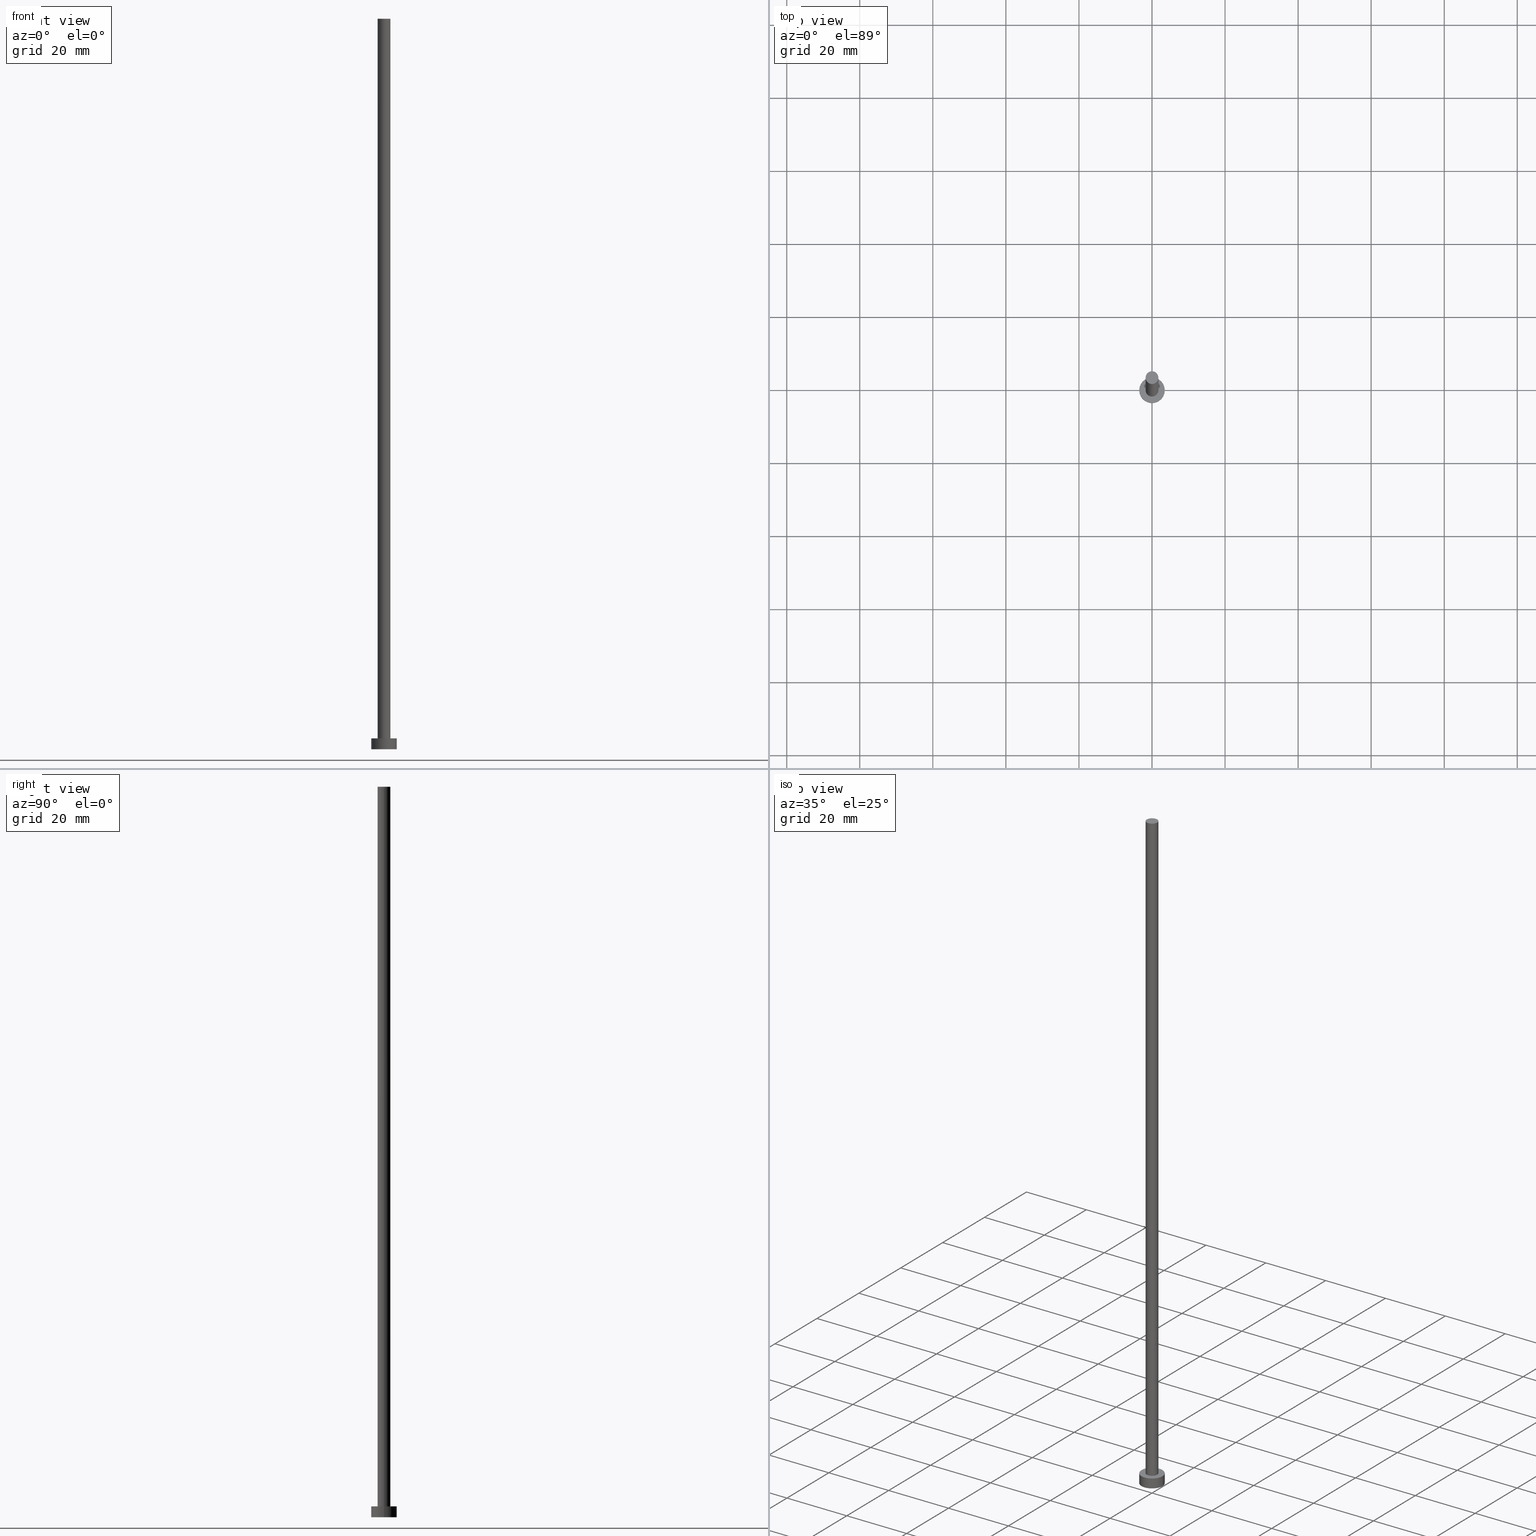
[diagram: canonical four-view strip — front | top / right | iso, engineering-drawing reading convention]
A machine part, canonical four-view strip (front | top / right | iso — engineering-drawing reading convention). The complete STEP part file that produces these views, byte-faithful:
ISO-10303-21;
HEADER;
FILE_DESCRIPTION (( 'STEP AP203' ),
    '1' );
FILE_NAME ('caa0.STEP',
    '2023-02-13T13:59:09',
    ( '' ),
    ( '' ),
    'SwSTEP 2.0',
    'SolidWorks 2019',
    '' );
FILE_SCHEMA (( 'CONFIG_CONTROL_DESIGN' ));
ENDSEC;

DATA;
#1 = ORIENTED_EDGE ( 'NONE', *, *, #119, .T. ) ;
#2 = ORIENTED_EDGE ( 'NONE', *, *, #165, .F. ) ;
#3 = AXIS2_PLACEMENT_3D ( 'NONE', #148, #222, #128 ) ;
#4 = CC_DESIGN_SECURITY_CLASSIFICATION ( #239, ( #167 ) ) ;
#5 = DIRECTION ( 'NONE',  ( 1.000000000000000000, 0.000000000000000000, -0.000000000000000000 ) ) ;
#6 = LINE ( 'NONE', #56, #9 ) ;
#7 = APPROVAL_DATE_TIME ( #207, #168 ) ;
#8 = CARTESIAN_POINT ( 'NONE',  ( 1.750000000000000000, 2.143131898507868297E-16, 200.0000000000000000 ) ) ;
#9 = VECTOR ( 'NONE', #190, 1000.000000000000000 ) ;
#10 = CARTESIAN_POINT ( 'NONE',  ( 0.000000000000000000, 0.000000000000000000, 3.000000000000000000 ) ) ;
#11 = COORDINATED_UNIVERSAL_TIME_OFFSET ( 1, 0, .AHEAD. ) ;
#12 = ADVANCED_FACE ( 'NONE', ( #62 ), #140, .F. ) ;
#13 = CIRCLE ( 'NONE', #81, 1.750000000000000000 ) ;
#14 = APPLICATION_CONTEXT ( 'configuration controlled 3d designs of mechanical parts and assemblies' ) ;
#15 = DIRECTION ( 'NONE',  ( 1.000000000000000000, 0.000000000000000000, 0.000000000000000000 ) ) ;
#16 = APPROVAL_PERSON_ORGANIZATION ( #208, #226, #174 ) ;
#17 = APPROVAL_STATUS ( 'not_yet_approved' ) ;
#18 = ORIENTED_EDGE ( 'NONE', *, *, #145, .T. ) ;
#19 = VERTEX_POINT ( 'NONE', #65 ) ;
#20 = DIRECTION ( 'NONE',  ( 0.000000000000000000, 0.000000000000000000, 1.000000000000000000 ) ) ;
#21 =( GEOMETRIC_REPRESENTATION_CONTEXT ( 3 ) GLOBAL_UNCERTAINTY_ASSIGNED_CONTEXT ( ( #131 ) ) GLOBAL_UNIT_ASSIGNED_CONTEXT ( ( #45, #26, #87 ) ) REPRESENTATION_CONTEXT ( 'NONE', 'WORKASPACE' ) );
#22 = EDGE_CURVE ( 'NONE', #177, #164, #43, .T. ) ;
#23 = ORIENTED_EDGE ( 'NONE', *, *, #141, .F. ) ;
#24 = FACE_OUTER_BOUND ( 'NONE', #143, .T. ) ;
#25 = AXIS2_PLACEMENT_3D ( 'NONE', #210, #116, #15 ) ;
#26 =( NAMED_UNIT ( * ) PLANE_ANGLE_UNIT ( ) SI_UNIT ( $, .RADIAN. ) );
#27 = COORDINATED_UNIVERSAL_TIME_OFFSET ( 1, 0, .AHEAD. ) ;
#28 = CARTESIAN_POINT ( 'NONE',  ( 0.000000000000000000, 0.000000000000000000, 3.000000000000000000 ) ) ;
#29 = MANIFOLD_SOLID_BREP ( 'P�idat vysunut�m3', #52 ) ;
#30 = DATE_AND_TIME ( #67, #199 ) ;
#31 = CC_DESIGN_PERSON_AND_ORGANIZATION_ASSIGNMENT ( #129, #169, ( #171 ) ) ;
#32 = APPROVAL_STATUS ( 'not_yet_approved' ) ;
#33 = APPLICATION_PROTOCOL_DEFINITION ( 'international standard', 'config_control_design', 1994, #14 ) ;
#34 = COORDINATED_UNIVERSAL_TIME_OFFSET ( 1, 0, .AHEAD. ) ;
#35 = CIRCLE ( 'NONE', #178, 1.750000000000000000 ) ;
#36 = CARTESIAN_POINT ( 'NONE',  ( -1.750000000000000000, 0.000000000000000000, 3.000000000000000000 ) ) ;
#37 = APPROVAL ( #53, 'NEUR�EN�' ) ;
#38 = CARTESIAN_POINT ( 'NONE',  ( 0.000000000000000000, 0.000000000000000000, 0.000000000000000000 ) ) ;
#39 = FACE_OUTER_BOUND ( 'NONE', #198, .T. ) ;
#40 = DIRECTION ( 'NONE',  ( 0.000000000000000000, 0.000000000000000000, 1.000000000000000000 ) ) ;
#41 = ORIENTED_EDGE ( 'NONE', *, *, #22, .F. ) ;
#42 = EDGE_LOOP ( 'NONE', ( #118, #181, #196, #106 ) ) ;
#43 = LINE ( 'NONE', #125, #172 ) ;
#44 = APPROVAL_PERSON_ORGANIZATION ( #48, #168, #111 ) ;
#45 =( LENGTH_UNIT ( ) NAMED_UNIT ( * ) SI_UNIT ( .MILLI., .METRE. ) );
#46 = VERTEX_POINT ( 'NONE', #144 ) ;
#47 = CIRCLE ( 'NONE', #3, 3.500000000000000444 ) ;
#48 = PERSON_AND_ORGANIZATION ( #175, #113 ) ;
#49 = FACE_OUTER_BOUND ( 'NONE', #83, .T. ) ;
#50 = CARTESIAN_POINT ( 'NONE',  ( 0.000000000000000000, 0.000000000000000000, 0.000000000000000000 ) ) ;
#51 = PERSON_AND_ORGANIZATION ( #175, #113 ) ;
#52 = CLOSED_SHELL ( 'NONE', ( #54, #187, #70, #243, #12, #160, #229 ) ) ;
#53 = APPROVAL_STATUS ( 'not_yet_approved' ) ;
#54 = ADVANCED_FACE ( 'NONE', ( #39 ), #176, .T. ) ;
#55 = DIRECTION ( 'NONE',  ( 1.000000000000000000, 0.000000000000000000, 0.000000000000000000 ) ) ;
#56 = CARTESIAN_POINT ( 'NONE',  ( -1.750000000000000000, 0.000000000000000000, 200.0000000000000000 ) ) ;
#57 = CC_DESIGN_PERSON_AND_ORGANIZATION_ASSIGNMENT ( #51, #110, ( #154 ) ) ;
#58 = VERTEX_POINT ( 'NONE', #36 ) ;
#59 = CARTESIAN_POINT ( 'NONE',  ( 0.000000000000000000, 0.000000000000000000, 3.000000000000000000 ) ) ;
#60 = EDGE_LOOP ( 'NONE', ( #2, #102 ) ) ;
#61 = PRODUCT_RELATED_PRODUCT_CATEGORY ( 'detail', '', ( #171 ) ) ;
#62 = FACE_OUTER_BOUND ( 'NONE', #60, .T. ) ;
#63 = AXIS2_PLACEMENT_3D ( 'NONE', #120, #20, #96 ) ;
#64 = DIRECTION ( 'NONE',  ( 0.000000000000000000, 0.000000000000000000, 1.000000000000000000 ) ) ;
#65 = CARTESIAN_POINT ( 'NONE',  ( 1.750000000000000000, 2.143131898507868297E-16, 3.000000000000000000 ) ) ;
#66 = DIRECTION ( 'NONE',  ( 0.000000000000000000, 0.000000000000000000, 1.000000000000000000 ) ) ;
#67 = CALENDAR_DATE ( 2023, 13, 2 ) ;
#68 = AXIS2_PLACEMENT_3D ( 'NONE', #28, #64, #5 ) ;
#69 = MECHANICAL_CONTEXT ( 'NONE', #240, 'mechanical' ) ;
#70 = ADVANCED_FACE ( 'NONE', ( #127 ), #94, .T. ) ;
#71 = DIRECTION ( 'NONE',  ( -1.000000000000000000, 0.000000000000000000, 0.000000000000000000 ) ) ;
#72 = DIRECTION ( 'NONE',  ( 0.000000000000000000, 0.000000000000000000, 1.000000000000000000 ) ) ;
#73 = CIRCLE ( 'NONE', #205, 3.500000000000000444 ) ;
#74 = CC_DESIGN_PERSON_AND_ORGANIZATION_ASSIGNMENT ( #166, #237, ( #167 ) ) ;
#75 = EDGE_CURVE ( 'NONE', #194, #19, #152, .T. ) ;
#76 = FACE_OUTER_BOUND ( 'NONE', #99, .T. ) ;
#77 = DATE_TIME_ROLE ( 'classification_date' ) ;
#78 = DIRECTION ( 'NONE',  ( -1.000000000000000000, 0.000000000000000000, 0.000000000000000000 ) ) ;
#79 = ORIENTED_EDGE ( 'NONE', *, *, #135, .F. ) ;
#80 = DIRECTION ( 'NONE',  ( 0.000000000000000000, 0.000000000000000000, 1.000000000000000000 ) ) ;
#81 = AXIS2_PLACEMENT_3D ( 'NONE', #224, #193, #55 ) ;
#82 = ORIENTED_EDGE ( 'NONE', *, *, #219, .F. ) ;
#83 = EDGE_LOOP ( 'NONE', ( #105, #213 ) ) ;
#84 = ORIENTED_EDGE ( 'NONE', *, *, #75, .T. ) ;
#85 = AXIS2_PLACEMENT_3D ( 'NONE', #218, #234, #126 ) ;
#86 = ADVANCED_BREP_SHAPE_REPRESENTATION ( 'caa0', ( #29, #124 ), #21 ) ;
#87 =( NAMED_UNIT ( * ) SI_UNIT ( $, .STERADIAN. ) SOLID_ANGLE_UNIT ( ) );
#88 = PERSON_AND_ORGANIZATION ( #175, #113 ) ;
#89 = CC_DESIGN_APPROVAL ( #37, ( #154 ) ) ;
#90 = DIRECTION ( 'NONE',  ( -0.000000000000000000, -0.000000000000000000, -1.000000000000000000 ) ) ;
#91 = CIRCLE ( 'NONE', #231, 3.500000000000000444 ) ;
#92 = LOCAL_TIME ( 14, 59, 9.000000000000000000, #27 ) ;
#93 = CC_DESIGN_APPROVAL ( #168, ( #167 ) ) ;
#94 = CYLINDRICAL_SURFACE ( 'NONE', #238, 3.500000000000000444 ) ;
#95 = EDGE_CURVE ( 'NONE', #215, #164, #47, .T. ) ;
#96 = DIRECTION ( 'NONE',  ( 1.000000000000000000, 0.000000000000000000, 0.000000000000000000 ) ) ;
#97 = PERSON_AND_ORGANIZATION ( #175, #113 ) ;
#98 = CYLINDRICAL_SURFACE ( 'NONE', #146, 3.500000000000000444 ) ;
#99 = EDGE_LOOP ( 'NONE', ( #158, #82, #1, #156 ) ) ;
#100 = EDGE_CURVE ( 'NONE', #200, #177, #73, .T. ) ;
#101 = FACE_OUTER_BOUND ( 'NONE', #159, .T. ) ;
#102 = ORIENTED_EDGE ( 'NONE', *, *, #95, .F. ) ;
#103 = CYLINDRICAL_SURFACE ( 'NONE', #188, 1.750000000000000000 ) ;
#104 = LOCAL_TIME ( 14, 59, 9.000000000000000000, #192 ) ;
#105 = ORIENTED_EDGE ( 'NONE', *, *, #219, .T. ) ;
#106 = ORIENTED_EDGE ( 'NONE', *, *, #165, .T. ) ;
#107 = PLANE ( 'NONE',  #68 ) ;
#108 = CIRCLE ( 'NONE', #63, 1.750000000000000000 ) ;
#109 = CALENDAR_DATE ( 2023, 13, 2 ) ;
#110 = PERSON_AND_ORGANIZATION_ROLE ( 'creator' ) ;
#111 = APPROVAL_ROLE ( '' ) ;
#112 = COORDINATED_UNIVERSAL_TIME_OFFSET ( 1, 0, .AHEAD. ) ;
#113 = ORGANIZATION ( 'NEUR�EN�', 'NEUR�EN�', '' ) ;
#114 = DIRECTION ( 'NONE',  ( 0.000000000000000000, 0.000000000000000000, 1.000000000000000000 ) ) ;
#115 = CALENDAR_DATE ( 2023, 13, 2 ) ;
#116 = DIRECTION ( 'NONE',  ( 0.000000000000000000, 0.000000000000000000, 1.000000000000000000 ) ) ;
#117 = APPROVAL_DATE_TIME ( #134, #226 ) ;
#118 = ORIENTED_EDGE ( 'NONE', *, *, #201, .F. ) ;
#119 = EDGE_CURVE ( 'NONE', #46, #58, #6, .T. ) ;
#120 = CARTESIAN_POINT ( 'NONE',  ( 0.000000000000000000, 0.000000000000000000, 3.000000000000000000 ) ) ;
#121 = DIRECTION ( 'NONE',  ( -1.000000000000000000, 0.000000000000000000, 0.000000000000000000 ) ) ;
#122 = ORIENTED_EDGE ( 'NONE', *, *, #95, .T. ) ;
#123 = VECTOR ( 'NONE', #184, 1000.000000000000000 ) ;
#124 = AXIS2_PLACEMENT_3D ( 'NONE', #50, #72, #241 ) ;
#125 = CARTESIAN_POINT ( 'NONE',  ( -3.500000000000000444, 0.000000000000000000, 3.000000000000000000 ) ) ;
#126 = DIRECTION ( 'NONE',  ( 1.000000000000000000, 0.000000000000000000, -0.000000000000000000 ) ) ;
#127 = FACE_OUTER_BOUND ( 'NONE', #42, .T. ) ;
#128 = DIRECTION ( 'NONE',  ( 1.000000000000000000, 0.000000000000000000, 0.000000000000000000 ) ) ;
#129 = PERSON_AND_ORGANIZATION ( #175, #113 ) ;
#130 = AXIS2_PLACEMENT_3D ( 'NONE', #233, #203, #161 ) ;
#131 = UNCERTAINTY_MEASURE_WITH_UNIT (LENGTH_MEASURE( 1.000000000000000082E-05 ), #45, 'distance_accuracy_value', 'NONE');
#132 = DATE_TIME_ROLE ( 'creation_date' ) ;
#133 = DATE_AND_TIME ( #115, #104 ) ;
#134 = DATE_AND_TIME ( #250, #245 ) ;
#135 = EDGE_CURVE ( 'NONE', #58, #19, #248, .T. ) ;
#136 = DIRECTION ( 'NONE',  ( -0.000000000000000000, -0.000000000000000000, -1.000000000000000000 ) ) ;
#137 = DIRECTION ( 'NONE',  ( -0.000000000000000000, -0.000000000000000000, -1.000000000000000000 ) ) ;
#138 = CARTESIAN_POINT ( 'NONE',  ( 0.000000000000000000, 0.000000000000000000, 3.000000000000000000 ) ) ;
#139 = ORIENTED_EDGE ( 'NONE', *, *, #201, .T. ) ;
#140 = PLANE ( 'NONE',  #85 ) ;
#141 = EDGE_CURVE ( 'NONE', #19, #58, #108, .T. ) ;
#142 = PLANE ( 'NONE',  #130 ) ;
#143 = EDGE_LOOP ( 'NONE', ( #18, #253 ) ) ;
#144 = CARTESIAN_POINT ( 'NONE',  ( -1.750000000000000000, 0.000000000000000000, 200.0000000000000000 ) ) ;
#145 = EDGE_CURVE ( 'NONE', #177, #200, #244, .T. ) ;
#146 = AXIS2_PLACEMENT_3D ( 'NONE', #59, #252, #78 ) ;
#147 = PERSON_AND_ORGANIZATION_ROLE ( 'creator' ) ;
#148 = CARTESIAN_POINT ( 'NONE',  ( 0.000000000000000000, 0.000000000000000000, 0.000000000000000000 ) ) ;
#149 = APPLICATION_PROTOCOL_DEFINITION ( 'international standard', 'config_control_design', 1994, #240 ) ;
#150 = APPROVAL_PERSON_ORGANIZATION ( #204, #37, #246 ) ;
#151 = APPROVAL_DATE_TIME ( #30, #37 ) ;
#152 = LINE ( 'NONE', #8, #123 ) ;
#153 = DIRECTION ( 'NONE',  ( 1.000000000000000000, 0.000000000000000000, 0.000000000000000000 ) ) ;
#154 = PRODUCT_DEFINITION ( 'NEZN�M�', '', #167, #189 ) ;
#155 = CARTESIAN_POINT ( 'NONE',  ( 3.500000000000000444, 4.286263797015737088E-16, 3.000000000000000000 ) ) ;
#156 = ORIENTED_EDGE ( 'NONE', *, *, #135, .T. ) ;
#157 = CARTESIAN_POINT ( 'NONE',  ( -3.500000000000000444, 0.000000000000000000, 3.000000000000000000 ) ) ;
#158 = ORIENTED_EDGE ( 'NONE', *, *, #75, .F. ) ;
#159 = EDGE_LOOP ( 'NONE', ( #180, #139, #122, #41 ) ) ;
#160 = ADVANCED_FACE ( 'NONE', ( #76 ), #103, .T. ) ;
#161 = DIRECTION ( 'NONE',  ( 1.000000000000000000, 0.000000000000000000, -0.000000000000000000 ) ) ;
#162 = DIRECTION ( 'NONE',  ( -0.000000000000000000, -0.000000000000000000, -1.000000000000000000 ) ) ;
#163 = DIRECTION ( 'NONE',  ( 1.000000000000000000, 0.000000000000000000, 0.000000000000000000 ) ) ;
#164 = VERTEX_POINT ( 'NONE', #173 ) ;
#165 = EDGE_CURVE ( 'NONE', #164, #215, #91, .T. ) ;
#166 = PERSON_AND_ORGANIZATION ( #175, #113 ) ;
#167 = PRODUCT_DEFINITION_FORMATION_WITH_SPECIFIED_SOURCE ( 'LIBOVOLN�', '', #171, .NOT_KNOWN. ) ;
#168 = APPROVAL ( #32, 'NEUR�EN�' ) ;
#169 = PERSON_AND_ORGANIZATION_ROLE ( 'design_owner' ) ;
#170 = EDGE_CURVE ( 'NONE', #194, #46, #13, .T. ) ;
#171 = PRODUCT ( 'caa0', 'caa0', '', ( #69 ) ) ;
#172 = VECTOR ( 'NONE', #162, 1000.000000000000000 ) ;
#173 = CARTESIAN_POINT ( 'NONE',  ( -3.500000000000000444, 0.000000000000000000, 0.000000000000000000 ) ) ;
#174 = APPROVAL_ROLE ( '' ) ;
#175 = PERSON ( 'NEUR�EN�', 'NEUR�EN�', 'NEUR�EN�', ('NEUR�EN�'), ('NEUR�EN�'), ('NEUR�EN�') ) ;
#176 = CYLINDRICAL_SURFACE ( 'NONE', #212, 1.750000000000000000 ) ;
#177 = VERTEX_POINT ( 'NONE', #157 ) ;
#178 = AXIS2_PLACEMENT_3D ( 'NONE', #235, #66, #163 ) ;
#179 = ORIENTED_EDGE ( 'NONE', *, *, #119, .F. ) ;
#180 = ORIENTED_EDGE ( 'NONE', *, *, #100, .F. ) ;
#181 = ORIENTED_EDGE ( 'NONE', *, *, #145, .F. ) ;
#182 = LOCAL_TIME ( 14, 59, 9.000000000000000000, #11 ) ;
#183 = DIRECTION ( 'NONE',  ( 1.000000000000000000, 0.000000000000000000, 0.000000000000000000 ) ) ;
#184 = DIRECTION ( 'NONE',  ( -0.000000000000000000, -0.000000000000000000, -1.000000000000000000 ) ) ;
#185 = CC_DESIGN_PERSON_AND_ORGANIZATION_ASSIGNMENT ( #97, #211, ( #239 ) ) ;
#186 = CALENDAR_DATE ( 2023, 13, 2 ) ;
#187 = ADVANCED_FACE ( 'NONE', ( #101 ), #98, .T. ) ;
#188 = AXIS2_PLACEMENT_3D ( 'NONE', #191, #195, #247 ) ;
#189 = DESIGN_CONTEXT ( 'detailed design', #14, 'design' ) ;
#190 = DIRECTION ( 'NONE',  ( -0.000000000000000000, -0.000000000000000000, -1.000000000000000000 ) ) ;
#191 = CARTESIAN_POINT ( 'NONE',  ( 0.000000000000000000, 0.000000000000000000, 200.0000000000000000 ) ) ;
#192 = COORDINATED_UNIVERSAL_TIME_OFFSET ( 1, 0, .AHEAD. ) ;
#193 = DIRECTION ( 'NONE',  ( 0.000000000000000000, 0.000000000000000000, 1.000000000000000000 ) ) ;
#194 = VERTEX_POINT ( 'NONE', #214 ) ;
#195 = DIRECTION ( 'NONE',  ( -0.000000000000000000, -0.000000000000000000, -1.000000000000000000 ) ) ;
#196 = ORIENTED_EDGE ( 'NONE', *, *, #22, .T. ) ;
#197 = CARTESIAN_POINT ( 'NONE',  ( 3.500000000000000444, 4.286263797015737088E-16, 3.000000000000000000 ) ) ;
#198 = EDGE_LOOP ( 'NONE', ( #254, #84, #216, #179 ) ) ;
#199 = LOCAL_TIME ( 14, 59, 9.000000000000000000, #112 ) ;
#200 = VERTEX_POINT ( 'NONE', #155 ) ;
#201 = EDGE_CURVE ( 'NONE', #200, #215, #228, .T. ) ;
#202 = CARTESIAN_POINT ( 'NONE',  ( 3.500000000000000444, 4.286263797015737088E-16, 0.000000000000000000 ) ) ;
#203 = DIRECTION ( 'NONE',  ( 0.000000000000000000, 0.000000000000000000, 1.000000000000000000 ) ) ;
#204 = PERSON_AND_ORGANIZATION ( #175, #113 ) ;
#205 = AXIS2_PLACEMENT_3D ( 'NONE', #209, #114, #183 ) ;
#206 = DATE_AND_TIME ( #186, #182 ) ;
#207 = DATE_AND_TIME ( #109, #92 ) ;
#208 = PERSON_AND_ORGANIZATION ( #175, #113 ) ;
#209 = CARTESIAN_POINT ( 'NONE',  ( 0.000000000000000000, 0.000000000000000000, 3.000000000000000000 ) ) ;
#210 = CARTESIAN_POINT ( 'NONE',  ( 0.000000000000000000, 0.000000000000000000, 3.000000000000000000 ) ) ;
#211 = PERSON_AND_ORGANIZATION_ROLE ( 'classification_officer' ) ;
#212 = AXIS2_PLACEMENT_3D ( 'NONE', #230, #137, #121 ) ;
#213 = ORIENTED_EDGE ( 'NONE', *, *, #170, .T. ) ;
#214 = CARTESIAN_POINT ( 'NONE',  ( 1.750000000000000000, 2.143131898507868297E-16, 200.0000000000000000 ) ) ;
#215 = VERTEX_POINT ( 'NONE', #202 ) ;
#216 = ORIENTED_EDGE ( 'NONE', *, *, #141, .T. ) ;
#217 = FACE_BOUND ( 'NONE', #232, .T. ) ;
#218 = CARTESIAN_POINT ( 'NONE',  ( 0.000000000000000000, 0.000000000000000000, 0.000000000000000000 ) ) ;
#219 = EDGE_CURVE ( 'NONE', #46, #194, #35, .T. ) ;
#220 = SECURITY_CLASSIFICATION_LEVEL ( 'unclassified' ) ;
#221 = CC_DESIGN_DATE_AND_TIME_ASSIGNMENT ( #206, #132, ( #154 ) ) ;
#222 = DIRECTION ( 'NONE',  ( 0.000000000000000000, 0.000000000000000000, 1.000000000000000000 ) ) ;
#223 = AXIS2_PLACEMENT_3D ( 'NONE', #138, #40, #249 ) ;
#224 = CARTESIAN_POINT ( 'NONE',  ( 0.000000000000000000, 0.000000000000000000, 200.0000000000000000 ) ) ;
#225 = CC_DESIGN_APPROVAL ( #226, ( #239 ) ) ;
#226 = APPROVAL ( #17, 'NEUR�EN�' ) ;
#227 = SHAPE_DEFINITION_REPRESENTATION ( #242, #86 ) ;
#228 = LINE ( 'NONE', #197, #255 ) ;
#229 = ADVANCED_FACE ( 'NONE', ( #49 ), #142, .T. ) ;
#230 = CARTESIAN_POINT ( 'NONE',  ( 0.000000000000000000, 0.000000000000000000, 200.0000000000000000 ) ) ;
#231 = AXIS2_PLACEMENT_3D ( 'NONE', #38, #80, #153 ) ;
#232 = EDGE_LOOP ( 'NONE', ( #79, #23 ) ) ;
#233 = CARTESIAN_POINT ( 'NONE',  ( 0.000000000000000000, 0.000000000000000000, 200.0000000000000000 ) ) ;
#234 = DIRECTION ( 'NONE',  ( 0.000000000000000000, 0.000000000000000000, 1.000000000000000000 ) ) ;
#235 = CARTESIAN_POINT ( 'NONE',  ( 0.000000000000000000, 0.000000000000000000, 200.0000000000000000 ) ) ;
#236 = CC_DESIGN_PERSON_AND_ORGANIZATION_ASSIGNMENT ( #88, #147, ( #167 ) ) ;
#237 = PERSON_AND_ORGANIZATION_ROLE ( 'design_supplier' ) ;
#238 = AXIS2_PLACEMENT_3D ( 'NONE', #10, #90, #71 ) ;
#239 = SECURITY_CLASSIFICATION ( '', '', #220 ) ;
#240 = APPLICATION_CONTEXT ( 'configuration controlled 3d designs of mechanical parts and assemblies' ) ;
#241 = DIRECTION ( 'NONE',  ( 1.000000000000000000, 0.000000000000000000, 0.000000000000000000 ) ) ;
#242 = PRODUCT_DEFINITION_SHAPE ( 'NONE', 'NONE',  #154 ) ;
#243 = ADVANCED_FACE ( 'NONE', ( #217, #24 ), #107, .T. ) ;
#244 = CIRCLE ( 'NONE', #25, 3.500000000000000444 ) ;
#245 = LOCAL_TIME ( 14, 59, 9.000000000000000000, #34 ) ;
#246 = APPROVAL_ROLE ( '' ) ;
#247 = DIRECTION ( 'NONE',  ( -1.000000000000000000, 0.000000000000000000, 0.000000000000000000 ) ) ;
#248 = CIRCLE ( 'NONE', #223, 1.750000000000000000 ) ;
#249 = DIRECTION ( 'NONE',  ( 1.000000000000000000, 0.000000000000000000, 0.000000000000000000 ) ) ;
#250 = CALENDAR_DATE ( 2023, 13, 2 ) ;
#251 = CC_DESIGN_DATE_AND_TIME_ASSIGNMENT ( #133, #77, ( #239 ) ) ;
#252 = DIRECTION ( 'NONE',  ( -0.000000000000000000, -0.000000000000000000, -1.000000000000000000 ) ) ;
#253 = ORIENTED_EDGE ( 'NONE', *, *, #100, .T. ) ;
#254 = ORIENTED_EDGE ( 'NONE', *, *, #170, .F. ) ;
#255 = VECTOR ( 'NONE', #136, 1000.000000000000000 ) ;
ENDSEC;
END-ISO-10303-21;
